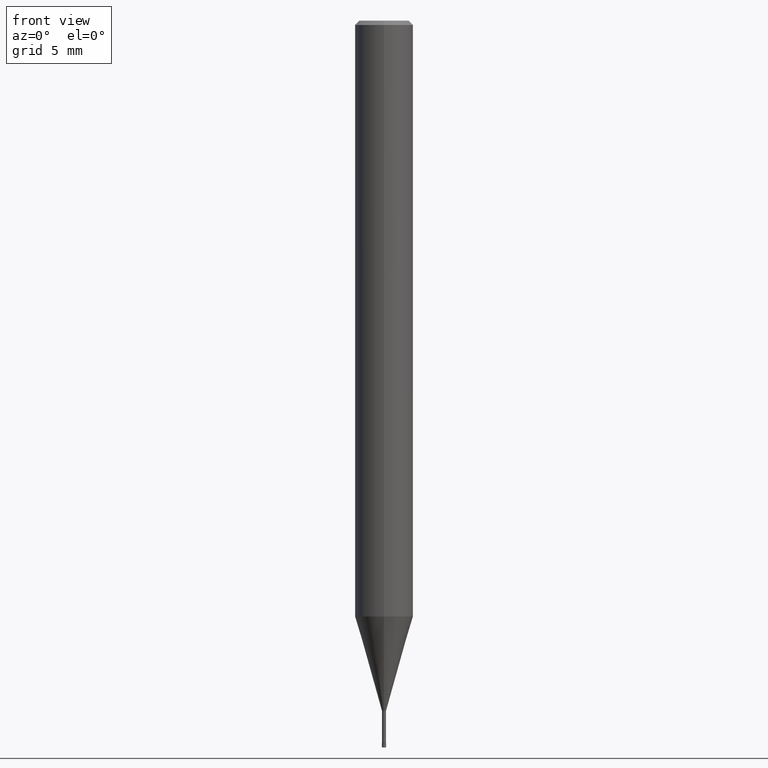
[diagram: clean part render]
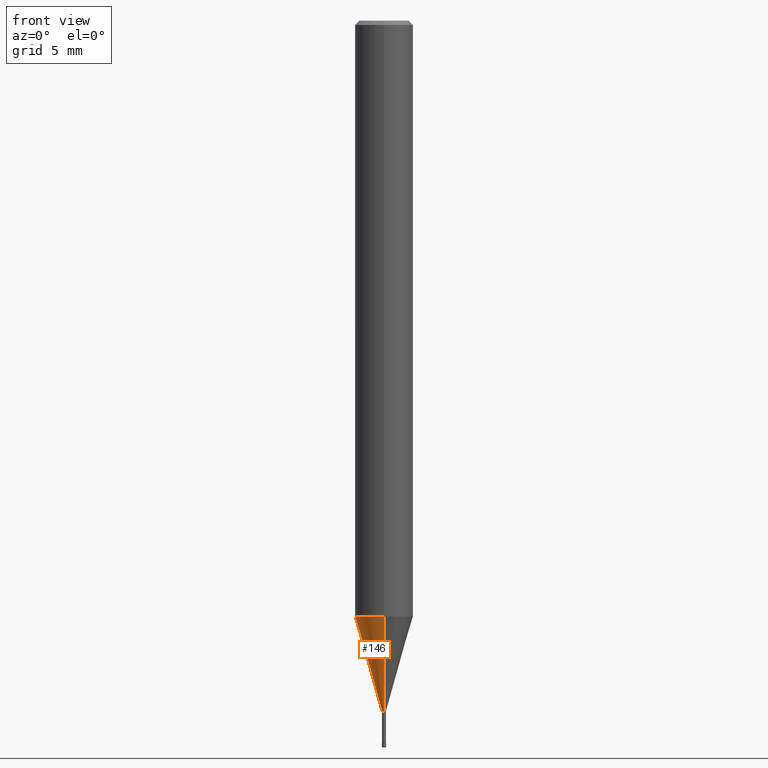
[diagram: same view with one face highlighted and labeled with its STEP entity id]
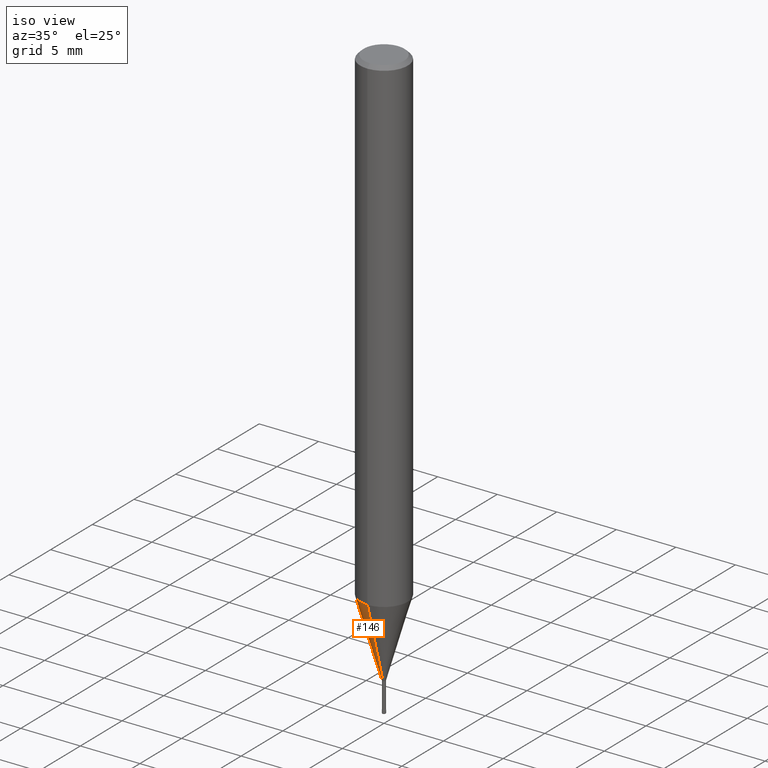
[diagram: same view with one face highlighted and labeled with its STEP entity id]
A machine part, front view. The second image highlights one B-rep face of the part: STEP entity #146.
A second angle (iso view) of the same face is appended — the face is thin or edge-on in the first view.
In plain terms, the highlighted conical surface has half-angle 16 deg.
Its self-contained STEP definition (entity closure, byte-faithful):
#130=EDGE_CURVE('',#182,#138,#288,.T.);
#138=VERTEX_POINT('',#296);
#146=ADVANCED_FACE('',(#304),#305,.T.);
#160=VERTEX_POINT('',#321);
#162=VERTEX_POINT('',#323);
#180=EDGE_CURVE('',#138,#160,#346,.T.);
#182=VERTEX_POINT('',#348);
#218=EDGE_CURVE('',#162,#182,#388,.T.);
#226=EDGE_CURVE('',#162,#160,#396,.T.);
#288=CIRCLE('',#459,1.99995);
#296=CARTESIAN_POINT('',(0.0,1.99995,-40.996));
#304=FACE_OUTER_BOUND('',#480,.T.);
#305=CONICAL_SURFACE('',#481,1.06745,0.279253818445948);
#321=CARTESIAN_POINT('',(0.0,0.13495,-47.5));
#323=CARTESIAN_POINT('',(1.6526062744833E-017,-0.13495,-47.5));
#346=LINE('',#529,#530);
#348=CARTESIAN_POINT('',(2.44915147732706E-016,-1.99995,-40.996));
#388=LINE('',#583,#584);
#396=CIRCLE('',#594,0.13495);
#459=AXIS2_PLACEMENT_3D('',#657,#658,#659);
#480=EDGE_LOOP('',(#666,#667,#668,#669));
#481=AXIS2_PLACEMENT_3D('',#670,#671,#672);
#529=CARTESIAN_POINT('',(-1.3072060523877E-016,1.06745,-44.248));
#530=VECTOR('',#738,1.0);
#583=CARTESIAN_POINT('',(1.3072060523877E-016,-1.06745,-44.248));
#584=VECTOR('',#787,1.0);
#594=AXIS2_PLACEMENT_3D('',#791,#792,#793);
#657=CARTESIAN_POINT('',(0.0,0.0,-40.996));
#658=DIRECTION('',(0.0,0.0,-1.0));
#659=DIRECTION('',(0.0,1.0,0.0));
#666=ORIENTED_EDGE('',*,*,#180,.T.);
#667=ORIENTED_EDGE('',*,*,#226,.F.);
#668=ORIENTED_EDGE('',*,*,#218,.T.);
#669=ORIENTED_EDGE('',*,*,#130,.T.);
#670=CARTESIAN_POINT('',(0.0,0.0,-44.248));
#671=DIRECTION('',(-0.0,-0.0,1.0));
#672=DIRECTION('',(0.0,1.0,0.0));
#738=DIRECTION('',(3.3754859704966E-017,-0.275638449854572,-0.961261382227419));
#787=DIRECTION('',(3.3754859704966E-017,-0.275638449854572,0.961261382227419));
#791=CARTESIAN_POINT('',(0.0,0.0,-47.5));
#792=DIRECTION('',(0.0,0.0,-1.0));
#793=DIRECTION('',(0.0,1.0,0.0));